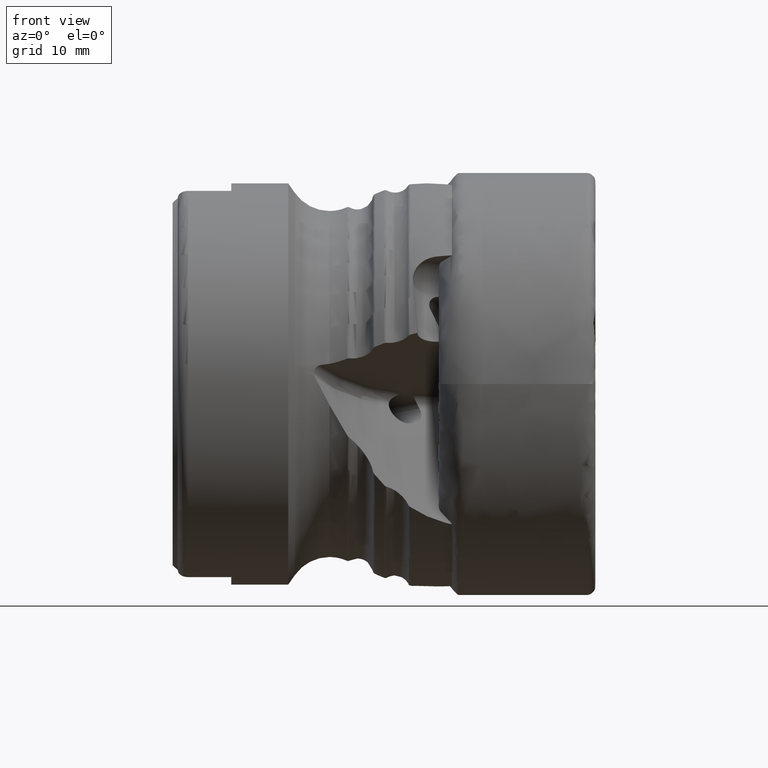
[diagram: clean part render]
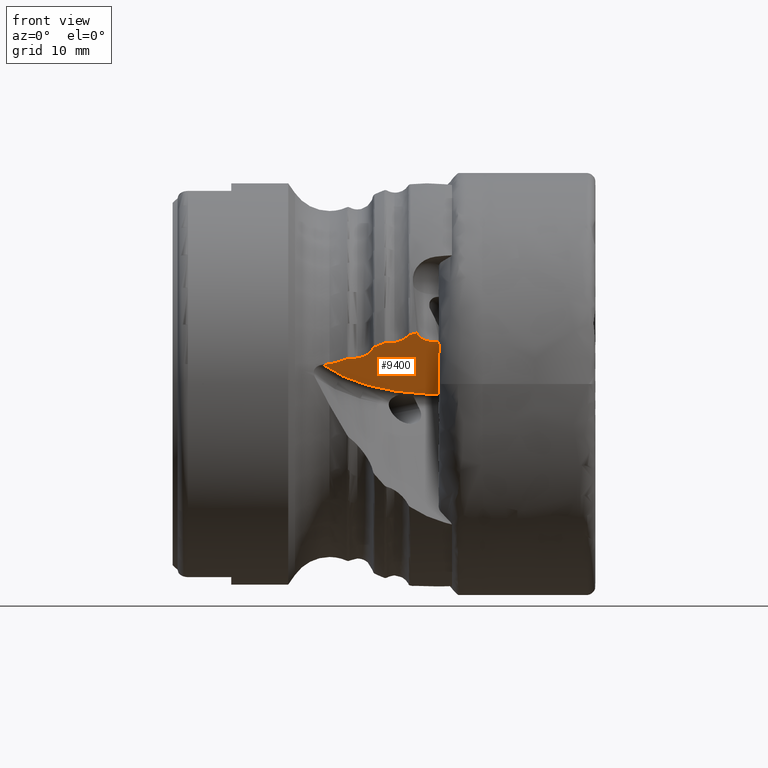
[diagram: same view with one face highlighted and labeled with its STEP entity id]
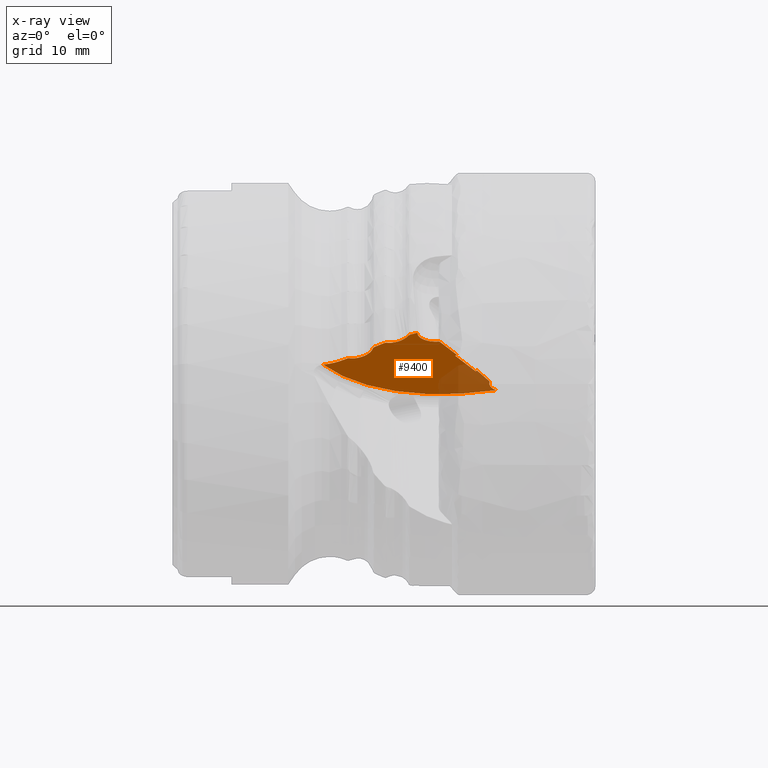
[diagram: x-ray of the same camera — body ghosted, the highlighted face saturated]
A machine part, front view. The second image highlights one B-rep face of the part: STEP entity #9400.
The next image is the same camera in x-ray: the body ghosted, the highlighted face saturated — about 19% of this face is hidden behind the body in this view.
In plain terms, the highlighted planar face has unit normal (-0.1638, 0.4932, 0.8543).
Its self-contained STEP definition (entity closure, byte-faithful):
#44 = VERTEX_POINT ( 'NONE', #5693 ) ;
#246 = VERTEX_POINT ( 'NONE', #7299 ) ;
#247 = VECTOR ( 'NONE', #10240, 1000.000000000000000 ) ;
#293 = B_SPLINE_CURVE_WITH_KNOTS ( 'NONE', 3,
 ( #1567, #692, #11453, #8530 ),
 .UNSPECIFIED., .F., .F.,
 ( 4, 4 ),
 ( 0.001732312793140167000, 0.002350826953086308100 ),
 .UNSPECIFIED. ) ;
#296 = CARTESIAN_POINT ( 'NONE',  ( -16.25928659763279400, -18.56466255637203500, 4.785584921961304700 ) ) ;
#320 = ORIENTED_EDGE ( 'NONE', *, *, #3134, .F. ) ;
#324 = B_SPLINE_CURVE_WITH_KNOTS ( 'NONE', 3,
 ( #5264, #2426, #12019, #6248, #9178, #7306, #8257, #2596, #11385, #11214 ),
 .UNSPECIFIED., .F., .F.,
 ( 4, 2, 2, 2, 4 ),
 ( 4.311938784021516300E-007, 0.0004154495496244667300, 0.0008304679053705312500, 0.001245486261116595900, 0.001660504616862660500 ),
 .UNSPECIFIED. ) ;
#372 = VERTEX_POINT ( 'NONE', #12306 ) ;
#419 = CARTESIAN_POINT ( 'NONE',  ( -20.02064262443753500, -17.63809508405531200, 3.529275608035401300 ) ) ;
#452 = CARTESIAN_POINT ( 'NONE',  ( -18.68126151810929500, -17.81853247613278800, 3.890318575010085000 ) ) ;
#499 =( BOUNDED_CURVE ( )  B_SPLINE_CURVE ( 3, ( #10281, #4403, #2473, #6373 ),
 .UNSPECIFIED., .F., .T. ) 
 B_SPLINE_CURVE_WITH_KNOTS ( ( 4, 4 ),
 ( 4.555259990297819300, 5.573532066662134600 ),
 .UNSPECIFIED. ) 
 CURVE ( )  GEOMETRIC_REPRESENTATION_ITEM ( )  RATIONAL_B_SPLINE_CURVE ( ( 1.000000000000000000, 0.9154439655823976000, 0.9154439655823976000, 1.000000000000000000 ) ) 
 REPRESENTATION_ITEM ( '' )  );
#564 = CARTESIAN_POINT ( 'NONE',  ( -16.04619360660492000, -18.58597432853758100, 4.838756393424720400 ) ) ;
#692 = CARTESIAN_POINT ( 'NONE',  ( -24.54173312176350000, -16.27981283671135800, 1.878013275757697700 ) ) ;
#708 = DIRECTION ( 'NONE',  ( -0.1638425078055066300, 0.4932432545499156300, 0.8543223773711008400 ) ) ;
#713 = DIRECTION ( 'NONE',  ( 0.4812669720744136000, 0.7959387694451546300, -0.3672377661467549100 ) ) ;
#792 = CARTESIAN_POINT ( 'NONE',  ( -10.50735222303118400, -10.44682190275985100, 1.201857195363393400 ) ) ;
#900 = CARTESIAN_POINT ( 'NONE',  ( -9.576801610211363800, -9.063571843650338500, 0.5816990103495324200 ) ) ;
#1073 = VERTEX_POINT ( 'NONE', #9835 ) ;
#1183 = CARTESIAN_POINT ( 'NONE',  ( -16.47170952644368600, -18.53903496843645700, 4.730050218074268300 ) ) ;
#1248 = B_SPLINE_CURVE_WITH_KNOTS ( 'NONE', 3,
 ( #4322, #10020, #11170, #1506 ),
 .UNSPECIFIED., .F., .F.,
 ( 4, 4 ),
 ( 2.236538292232658800E-007, 0.0002620645247950349600 ),
 .UNSPECIFIED. ) ;
#1296 = ORIENTED_EDGE ( 'NONE', *, *, #6526, .T. ) ;
#1360 = CARTESIAN_POINT ( 'NONE',  ( -20.14617852433819700, -17.58887470584972600, 3.476782851924245000 ) ) ;
#1367 = CARTESIAN_POINT ( 'NONE',  ( -18.79856528569024500, -17.86373034351819200, 3.893916982161555600 ) ) ;
#1399 = VERTEX_POINT ( 'NONE', #10569 ) ;
#1437 = ORIENTED_EDGE ( 'NONE', *, *, #2830, .T. ) ;
#1452 = LINE ( 'NONE', #792, #247 ) ;
#1506 = CARTESIAN_POINT ( 'NONE',  ( -19.15969123772051900, -17.94411304714139300, 3.871068984980765100 ) ) ;
#1567 = CARTESIAN_POINT ( 'NONE',  ( -24.33860484359848500, -16.27552184558049600, 1.914491945748806300 ) ) ;
#1579 = CARTESIAN_POINT ( 'NONE',  ( -16.84461627776071400, -18.44944887953622400, 4.606811363335477700 ) ) ;
#1607 = CARTESIAN_POINT ( 'NONE',  ( -19.15969123772051900, -17.94411304714139300, 3.871068984980765100 ) ) ;
#1668 = CARTESIAN_POINT ( 'NONE',  ( -16.68345526702159300, -18.50904566664640400, 4.672127149124230000 ) ) ;
#1787 = CARTESIAN_POINT ( 'NONE',  ( -9.970116225556935800, -9.784561730996010500, 0.9225325801000947600 ) ) ;
#1791 = CARTESIAN_POINT ( 'NONE',  ( -21.95460907775754200, -16.36966604893478900, 2.426050403900640500 ) ) ;
#1818 = VERTEX_POINT ( 'NONE', #5851 ) ;
#1943 = DIRECTION ( 'NONE',  ( 0.1638425078055066300, -0.4932432545499155800, -0.8543223773711008400 ) ) ;
#1948 = CARTESIAN_POINT ( 'NONE',  ( -20.05799696169266600, -17.62345188645162600, 3.513657514573526700 ) ) ;
#2025 = DIRECTION ( 'NONE',  ( 1.734723475976807700E-015, -0.8660254037844432600, 0.4999999999999921700 ) ) ;
#2240 = CARTESIAN_POINT ( 'NONE',  ( -16.14000575762616300, -20.11736251444975200, 5.704912418729475300 ) ) ;
#2345 = ORIENTED_EDGE ( 'NONE', *, *, #4421, .T. ) ;
#2403 = EDGE_CURVE ( 'NONE', #4937, #1818, #10301, .T. ) ;
#2426 = CARTESIAN_POINT ( 'NONE',  ( -16.95035830614502000, -18.28086515609679100, 4.489200229428944600 ) ) ;
#2471 = CARTESIAN_POINT ( 'NONE',  ( -12.43242011132884000, -13.63057698054047500, 2.670808259950414200 ) ) ;
#2473 = CARTESIAN_POINT ( 'NONE',  ( -9.070167720966122000, -7.143674572803872600, -0.4295916150689375000 ) ) ;
#2596 = CARTESIAN_POINT ( 'NONE',  ( -17.92787038846846700, -17.73997333491700300, 3.989448280369620300 ) ) ;
#2669 = CARTESIAN_POINT ( 'NONE',  ( -10.36111012513283600, -10.50642900829278800, 1.264317779572768300 ) ) ;
#2750 = CARTESIAN_POINT ( 'NONE',  ( -9.183118680948954400, -8.343433801277855700, 0.2414278890089253400 ) ) ;
#2830 = EDGE_CURVE ( 'NONE', #9230, #372, #6482, .T. ) ;
#2839 = CARTESIAN_POINT ( 'NONE',  ( -9.871133111016149500, -9.604556463925106900, 0.8375895375537303300 ) ) ;
#2932 = CARTESIAN_POINT ( 'NONE',  ( -22.51832895833708300, -16.59203191726537700, 2.446322828129440900 ) ) ;
#2951 = VERTEX_POINT ( 'NONE', #11590 ) ;
#3085 = CARTESIAN_POINT ( 'NONE',  ( -12.43242011132884000, -13.63057698054047500, 2.670808259950414200 ) ) ;
#3093 = LINE ( 'NONE', #6783, #5369 ) ;
#3111 = CARTESIAN_POINT ( 'NONE',  ( -16.04619360660492000, -18.58597432853758100, 4.838756393424720400 ) ) ;
#3134 = EDGE_CURVE ( 'NONE', #7513, #4287, #9249, .T. ) ;
#3159 = EDGE_CURVE ( 'NONE', #6544, #2951, #293, .T. ) ;
#3183 = CARTESIAN_POINT ( 'NONE',  ( -19.15969123772051900, -17.94411304714139300, 3.871068984980765100 ) ) ;
#3203 = EDGE_CURVE ( 'NONE', #9046, #3615, #9232, .T. ) ;
#3229 = CARTESIAN_POINT ( 'NONE',  ( -8.681716573700253300, -6.702818662285026500, -0.6096224769986017300 ) ) ;
#3549 = CARTESIAN_POINT ( 'NONE',  ( -12.26019494078442500, -13.70077457797376200, 2.744366318282192500 ) ) ;
#3615 = VERTEX_POINT ( 'NONE', #9360 ) ;
#3690 = CARTESIAN_POINT ( 'NONE',  ( -22.95817910918978200, -16.46514042153781800, 2.288707237494841200 ) ) ;
#3728 = EDGE_CURVE ( 'NONE', #9974, #246, #499, .T. ) ;
#3987 = ORIENTED_EDGE ( 'NONE', *, *, #2403, .F. ) ;
#4287 = VERTEX_POINT ( 'NONE', #8317 ) ;
#4303 = CARTESIAN_POINT ( 'NONE',  ( -20.20849401774367800, -17.51564892240099500, 3.422555019800178800 ) ) ;
#4311 = VECTOR ( 'NONE', #4987, 1000.000000000000200 ) ;
#4322 = CARTESIAN_POINT ( 'NONE',  ( -18.90843732244387700, -17.92132838707994600, 3.906099896595707700 ) ) ;
#4353 = CARTESIAN_POINT ( 'NONE',  ( -18.32263526145333900, -17.73787109103864500, 3.912526282144547900 ) ) ;
#4375 = DIRECTION ( 'NONE',  ( 0.9864865090998470300, 0.08192125390275184500, 0.1418917739793197900 ) ) ;
#4377 = CARTESIAN_POINT ( 'NONE',  ( -22.43486854980261200, -16.54616591081900300, 2.435848169039280400 ) ) ;
#4403 = CARTESIAN_POINT ( 'NONE',  ( -9.302392850448690400, -7.745182124339825300, -0.1268473564414792600 ) ) ;
#4421 = EDGE_CURVE ( 'NONE', #1399, #4907, #8005, .T. ) ;
#4450 = CARTESIAN_POINT ( 'NONE',  ( -20.31784233519971700, -17.13220443688232600, 3.180202350577263200 ) ) ;
#4478 = CARTESIAN_POINT ( 'NONE',  ( -15.11532785688518000, -16.69236164857213100, 3.924000649037441500 ) ) ;
#4497 = CARTESIAN_POINT ( 'NONE',  ( -20.25814942082535100, -17.27618534875055900, 3.274777715208230200 ) ) ;
#4531 = B_SPLINE_CURVE_WITH_KNOTS ( 'NONE', 3,
 ( #3111, #296, #1183, #7901 ),
 .UNSPECIFIED., .F., .F.,
 ( 4, 4 ),
 ( 0.002669087444836505400, 0.003329515748926952900 ),
 .UNSPECIFIED. ) ;
#4590 = CARTESIAN_POINT ( 'NONE',  ( -16.68345526702159300, -18.50904566664640400, 4.672127149124230000 ) ) ;
#4630 = CARTESIAN_POINT ( 'NONE',  ( -24.05418491991808600, -16.26951360595487700, 1.965569327138333200 ) ) ;
#4633 = CARTESIAN_POINT ( 'NONE',  ( -20.22600956930870100, -17.43118003660183700, 3.370427741838869700 ) ) ;
#4675 = CARTESIAN_POINT ( 'NONE',  ( -21.69999999999999600, -16.34777268031963600, 2.462239358140820800 ) ) ;
#4721 = ORIENTED_EDGE ( 'NONE', *, *, #11425, .T. ) ;
#4748 = CARTESIAN_POINT ( 'NONE',  ( -21.82613041890757400, -16.35112452154186300, 2.439985169821777600 ) ) ;
#4907 = VERTEX_POINT ( 'NONE', #4377 ) ;
#4937 = VERTEX_POINT ( 'NONE', #3085 ) ;
#4987 = DIRECTION ( 'NONE',  ( -0.4812669720744138200, -0.7959387694451544000, 0.3672377661467549600 ) ) ;
#5046 = B_SPLINE_CURVE_WITH_KNOTS ( 'NONE', 3,
 ( #9654, #2932, #6677, #8752 ),
 .UNSPECIFIED., .F., .F.,
 ( 4, 4 ),
 ( 2.263145974074533100E-007, 0.0002835084907783587900 ),
 .UNSPECIFIED. ) ;
#5061 = B_SPLINE_CURVE_WITH_KNOTS ( 'NONE', 3,
 ( #3183, #11006, #8926, #419 ),
 .UNSPECIFIED., .F., .F.,
 ( 4, 4 ),
 ( 2.229752659061665500E-007, 0.0009757776874911953100 ),
 .UNSPECIFIED. ) ;
#5106 = ORIENTED_EDGE ( 'NONE', *, *, #11964, .T. ) ;
#5201 = ORIENTED_EDGE ( 'NONE', *, *, #11304, .T. ) ;
#5211 = CARTESIAN_POINT ( 'NONE',  ( -18.44366900355058200, -17.75590445243651100, 3.899725917484086600 ) ) ;
#5264 = CARTESIAN_POINT ( 'NONE',  ( -16.88617794637232100, -18.38318742272516500, 4.560584569248519800 ) ) ;
#5326 = EDGE_CURVE ( 'NONE', #5539, #9888, #5061, .T. ) ;
#5334 = VERTEX_POINT ( 'NONE', #3229 ) ;
#5336 = CARTESIAN_POINT ( 'NONE',  ( -16.88617794637232100, -18.38318742272516500, 4.560584569248519800 ) ) ;
#5360 = CARTESIAN_POINT ( 'NONE',  ( -8.681716573700251500, -6.702818662285024800, -0.6096224769986009500 ) ) ;
#5369 = VECTOR ( 'NONE', #10644, 1000.000000000000000 ) ;
#5436 = CARTESIAN_POINT ( 'NONE',  ( -20.59998949970115200, -16.74811207533574000, 2.904336153341093400 ) ) ;
#5473 = CARTESIAN_POINT ( 'NONE',  ( -21.52114196468544800, -16.35050097871045300, 2.498116053679437800 ) ) ;
#5539 = VERTEX_POINT ( 'NONE', #1607 ) ;
#5573 = EDGE_CURVE ( 'NONE', #5334, #246, #6011, .T. ) ;
#5588 = CARTESIAN_POINT ( 'NONE',  ( -20.03309469592265700, -17.63321508540719800, 3.524070073037506300 ) ) ;
#5607 = CARTESIAN_POINT ( 'NONE',  ( -21.25991403166245400, -16.39471723501026500, 2.573742786079312100 ) ) ;
#5693 = CARTESIAN_POINT ( 'NONE',  ( -22.70440709119350600, -16.56457620023431700, 2.394785075724019700 ) ) ;
#5715 = CARTESIAN_POINT ( 'NONE',  ( -20.02064262443753500, -17.63809508405531200, 3.529275608035401300 ) ) ;
#5716 = CARTESIAN_POINT ( 'NONE',  ( -9.520928924659857600, -8.975924692121108000, 0.5418112042281664200 ) ) ;
#5782 = VECTOR ( 'NONE', #713, 1000.000000000000100 ) ;
#5851 = CARTESIAN_POINT ( 'NONE',  ( -10.50735222303118400, -10.44682190275985100, 1.201857195363393400 ) ) ;
#5904 = ORIENTED_EDGE ( 'NONE', *, *, #3203, .T. ) ;
#6011 = LINE ( 'NONE', #5360, #9305 ) ;
#6015 = ORIENTED_EDGE ( 'NONE', *, *, #7734, .T. ) ;
#6244 = VERTEX_POINT ( 'NONE', #3549 ) ;
#6248 = CARTESIAN_POINT ( 'NONE',  ( -17.21103402373378100, -18.02499387376389400, 4.291480315012956100 ) ) ;
#6373 = CARTESIAN_POINT ( 'NONE',  ( -8.545351400614853400, -6.691494426358053400, -0.5900083250161883800 ) ) ;
#6482 = B_SPLINE_CURVE_WITH_KNOTS ( 'NONE', 3,
 ( #9205, #4353, #5211, #452, #1367, #8124 ),
 .UNSPECIFIED., .F., .F.,
 ( 4, 2, 4 ),
 ( 0.001660504616862660500, 0.002028548552987758700, 0.002396592489112856900 ),
 .UNSPECIFIED. ) ;
#6526 = EDGE_CURVE ( 'NONE', #6244, #4287, #10970, .T. ) ;
#6534 = CARTESIAN_POINT ( 'NONE',  ( -9.731584484111611000, -9.331251962412931500, 0.7065598375467877500 ) ) ;
#6544 = VERTEX_POINT ( 'NONE', #10814 ) ;
#6624 = CARTESIAN_POINT ( 'NONE',  ( -9.685562243079935700, -9.239968092229471400, 0.6626832461982599100 ) ) ;
#6677 = CARTESIAN_POINT ( 'NONE',  ( -22.62138281539749900, -16.59710769673134200, 2.429489594238400500 ) ) ;
#6783 = CARTESIAN_POINT ( 'NONE',  ( -12.43242011132884000, -13.63057698054047500, 2.670808259950414200 ) ) ;
#6951 = B_SPLINE_CURVE_WITH_KNOTS ( 'NONE', 3,
 ( #2750, #9513, #12292, #5716, #900, #6624, #6534, #2839, #1787, #10397, #10485, #2669 ),
 .UNSPECIFIED., .F., .F.,
 ( 4, 2, 2, 2, 2, 4 ),
 ( 0.001663167065889183100, 0.002330604264188843100, 0.002664322863338673300, 0.002998041462488503100, 0.003665478660788156600, 0.004332915859087810100 ),
 .UNSPECIFIED. ) ;
#7002 = ORIENTED_EDGE ( 'NONE', *, *, #8484, .T. ) ;
#7012 = EDGE_LOOP ( 'NONE', ( #7750, #9129, #10516, #3987, #6015, #1296, #320, #12496, #5904, #7457, #1437, #5106, #11206, #7002, #9407, #8407, #2345, #4721, #5201, #7774, #12070, #9967 ) ) ;
#7299 = CARTESIAN_POINT ( 'NONE',  ( -8.545351400614853400, -6.691494426358053400, -0.5900083250161883800 ) ) ;
#7301 = B_SPLINE_CURVE_WITH_KNOTS ( 'NONE', 3,
 ( #7590, #3690, #9432, #10369, #4630, #9345 ),
 .UNSPECIFIED., .F., .F.,
 ( 4, 2, 4 ),
 ( 2.275142582097774400E-007, 0.0008662701536991884000, 0.001732312793140167000 ),
 .UNSPECIFIED. ) ;
#7306 = CARTESIAN_POINT ( 'NONE',  ( -17.54337879165702000, -17.83945036946740700, 4.120619424535580500 ) ) ;
#7388 = CARTESIAN_POINT ( 'NONE',  ( -16.76954760565023200, -18.49685250933027800, 4.648576581101521800 ) ) ;
#7429 = DIRECTION ( 'NONE',  ( 0.9864865090998470300, 0.08192125390275199800, 0.1418917739793196800 ) ) ;
#7457 = ORIENTED_EDGE ( 'NONE', *, *, #12010, .T. ) ;
#7502 = CARTESIAN_POINT ( 'NONE',  ( -9.183118680948954400, -8.343433801277855700, 0.2414278890089253400 ) ) ;
#7513 = VERTEX_POINT ( 'NONE', #564 ) ;
#7588 = PLANE ( 'NONE',  #11150 ) ;
#7590 = CARTESIAN_POINT ( 'NONE',  ( -22.70440709119350600, -16.56457620023431700, 2.394785075724019700 ) ) ;
#7715 = EDGE_CURVE ( 'NONE', #2951, #5334, #10945, .T. ) ;
#7734 = EDGE_CURVE ( 'NONE', #4937, #6244, #3093, .T. ) ;
#7750 = ORIENTED_EDGE ( 'NONE', *, *, #3728, .F. ) ;
#7774 = ORIENTED_EDGE ( 'NONE', *, *, #3159, .T. ) ;
#7779 = FACE_OUTER_BOUND ( 'NONE', #7012, .T. ) ;
#7789 = VERTEX_POINT ( 'NONE', #9711 ) ;
#7865 = EDGE_CURVE ( 'NONE', #7513, #9046, #4531, .T. ) ;
#7901 = CARTESIAN_POINT ( 'NONE',  ( -16.68345526702159300, -18.50904566664640400, 4.672127149124230000 ) ) ;
#8005 = B_SPLINE_CURVE_WITH_KNOTS ( 'NONE', 3,
 ( #10534, #4748, #1791, #8491, #10442, #11494 ),
 .UNSPECIFIED., .F., .F.,
 ( 4, 2, 4 ),
 ( 0.002188831658622608300, 0.002571323110308206100, 0.002953814561993803800 ),
 .UNSPECIFIED. ) ;
#8116 = CARTESIAN_POINT ( 'NONE',  ( -20.05799696169266600, -17.62345188645162600, 3.513657514573526700 ) ) ;
#8124 = CARTESIAN_POINT ( 'NONE',  ( -18.90843732244387700, -17.92132838707994600, 3.906099896595707700 ) ) ;
#8257 = CARTESIAN_POINT ( 'NONE',  ( -17.66836515780874000, -17.79542119957358900, 4.071229203884685800 ) ) ;
#8317 = CARTESIAN_POINT ( 'NONE',  ( -13.92108889847426800, -16.44762813238335800, 4.011735621019950800 ) ) ;
#8407 = ORIENTED_EDGE ( 'NONE', *, *, #12131, .T. ) ;
#8414 = CARTESIAN_POINT ( 'NONE',  ( -20.02064262443753500, -17.63809508405531200, 3.529275608035401300 ) ) ;
#8425 = CARTESIAN_POINT ( 'NONE',  ( -8.681716573700255100, -23.15730133418944800, 8.890377523001248500 ) ) ;
#8484 = EDGE_CURVE ( 'NONE', #9888, #1073, #10341, .T. ) ;
#8491 = CARTESIAN_POINT ( 'NONE',  ( -22.20083677225522900, -16.43576626975590200, 2.416991674879389600 ) ) ;
#8530 = CARTESIAN_POINT ( 'NONE',  ( -24.94742010240212000, -16.33209037788830600, 1.830392812078543500 ) ) ;
#8748 = B_SPLINE_CURVE_WITH_KNOTS ( 'NONE', 3,
 ( #4633, #4497, #4450, #12312, #5436, #12188, #9309, #5607, #11265, #5473, #12228, #4675 ),
 .UNSPECIFIED., .F., .F.,
 ( 4, 2, 2, 2, 2, 4 ),
 ( 1.136551653633666500E-006, 0.0005480603283958773900, 0.001094984105138121100, 0.001641907881880364700, 0.001915369770251486600, 0.002188831658622608300 ),
 .UNSPECIFIED. ) ;
#8752 = CARTESIAN_POINT ( 'NONE',  ( -22.70440709119350600, -16.56457620023431700, 2.394785075724019700 ) ) ;
#8881 = CARTESIAN_POINT ( 'NONE',  ( -18.20000000000000300, -17.73324659121468400, 3.933375397080375100 ) ) ;
#8926 = CARTESIAN_POINT ( 'NONE',  ( -19.73834568536217300, -17.74872797615686100, 3.647288630841391700 ) ) ;
#9046 = VERTEX_POINT ( 'NONE', #4590 ) ;
#9129 = ORIENTED_EDGE ( 'NONE', *, *, #9909, .T. ) ;
#9178 = CARTESIAN_POINT ( 'NONE',  ( -17.31638974248105400, -17.95339613109213800, 4.229938149926705500 ) ) ;
#9205 = CARTESIAN_POINT ( 'NONE',  ( -18.20000000000000300, -17.73324659121468400, 3.933375397080375100 ) ) ;
#9230 = VERTEX_POINT ( 'NONE', #8881 ) ;
#9232 = B_SPLINE_CURVE_WITH_KNOTS ( 'NONE', 3,
 ( #1668, #7388, #1579, #5336 ),
 .UNSPECIFIED., .F., .F.,
 ( 4, 4 ),
 ( 3.839597830587754600E-005, 0.0003083767605129434900 ),
 .UNSPECIFIED. ) ;
#9249 =( BOUNDED_CURVE ( )  B_SPLINE_CURVE ( 3, ( #10343, #11359, #4478, #11322 ),
 .UNSPECIFIED., .F., .F. ) 
 B_SPLINE_CURVE_WITH_KNOTS ( ( 4, 4 ),
 ( 3.225971095395004300, 4.573911879407406300 ),
 .UNSPECIFIED. ) 
 CURVE ( )  GEOMETRIC_REPRESENTATION_ITEM ( )  RATIONAL_B_SPLINE_CURVE ( ( 1.000000000000000000, 0.8542332909870490300, 0.8542332909870490300, 1.000000000000000000 ) ) 
 REPRESENTATION_ITEM ( '' )  );
#9305 = VECTOR ( 'NONE', #4375, 1000.000000000000000 ) ;
#9309 = CARTESIAN_POINT ( 'NONE',  ( -21.01312076100331800, -16.47287859821261000, 2.666199446038704400 ) ) ;
#9345 = CARTESIAN_POINT ( 'NONE',  ( -24.33860484359848500, -16.27552184558049600, 1.914491945748806300 ) ) ;
#9360 = CARTESIAN_POINT ( 'NONE',  ( -16.88617794637232100, -18.38318742272516500, 4.560584569248519800 ) ) ;
#9400 = ADVANCED_FACE ( 'NONE', ( #7779 ), #7588, .F. ) ;
#9407 = ORIENTED_EDGE ( 'NONE', *, *, #10664, .T. ) ;
#9432 = CARTESIAN_POINT ( 'NONE',  ( -23.22148621218066500, -16.39056885238712300, 2.195156112464320400 ) ) ;
#9513 = CARTESIAN_POINT ( 'NONE',  ( -9.272492292801819900, -8.526445515571760200, 0.3299496214188688000 ) ) ;
#9633 = CARTESIAN_POINT ( 'NONE',  ( -8.681716573700255100, -23.15730133418944400, 8.890377523001246700 ) ) ;
#9654 = CARTESIAN_POINT ( 'NONE',  ( -22.43486854980261200, -16.54616591081900300, 2.435848169039280400 ) ) ;
#9711 = CARTESIAN_POINT ( 'NONE',  ( -20.22600956930870100, -17.43118003660183700, 3.370427741838869700 ) ) ;
#9728 = B_SPLINE_CURVE_WITH_KNOTS ( 'NONE', 3,
 ( #8116, #1360, #4303, #11067 ),
 .UNSPECIFIED., .F., .F.,
 ( 4, 4 ),
 ( 6.112927604565348900E-006, 0.0003075026274510260600 ),
 .UNSPECIFIED. ) ;
#9730 = VERTEX_POINT ( 'NONE', #10943 ) ;
#9835 = CARTESIAN_POINT ( 'NONE',  ( -20.05799696169266600, -17.62345188645162600, 3.513657514573526700 ) ) ;
#9888 = VERTEX_POINT ( 'NONE', #8414 ) ;
#9909 = EDGE_CURVE ( 'NONE', #9974, #9730, #6951, .T. ) ;
#9967 = ORIENTED_EDGE ( 'NONE', *, *, #5573, .T. ) ;
#9974 = VERTEX_POINT ( 'NONE', #7502 ) ;
#10020 = CARTESIAN_POINT ( 'NONE',  ( -18.98649716209115100, -17.96224957300881200, 3.914755386884569300 ) ) ;
#10240 = DIRECTION ( 'NONE',  ( 0.8611258527220790900, -0.3509879871664279800, 0.3677902916588902700 ) ) ;
#10281 = CARTESIAN_POINT ( 'NONE',  ( -9.183118680948954400, -8.343433801277855700, 0.2414278890089253400 ) ) ;
#10301 = LINE ( 'NONE', #2471, #5782 ) ;
#10341 = B_SPLINE_CURVE_WITH_KNOTS ( 'NONE', 3,
 ( #5715, #5588, #11531, #1948 ),
 .UNSPECIFIED., .F., .F.,
 ( 4, 4 ),
 ( 2.305080562063051500E-007, 4.328506172030089700E-005 ),
 .UNSPECIFIED. ) ;
#10343 = CARTESIAN_POINT ( 'NONE',  ( -16.04619360660492000, -18.58597432853758100, 4.838756393424720400 ) ) ;
#10369 = CARTESIAN_POINT ( 'NONE',  ( -23.76770749863356300, -16.29255421033840900, 2.033812654680851000 ) ) ;
#10397 = CARTESIAN_POINT ( 'NONE',  ( -10.16317267740926900, -10.14638258530999200, 1.094405454340114000 ) ) ;
#10442 = CARTESIAN_POINT ( 'NONE',  ( -22.32191136428722400, -16.48408983079489000, 2.421671530908165800 ) ) ;
#10485 = CARTESIAN_POINT ( 'NONE',  ( -10.26255115432296500, -10.32625683567284400, 1.179197031498819200 ) ) ;
#10516 = ORIENTED_EDGE ( 'NONE', *, *, #12141, .F. ) ;
#10534 = CARTESIAN_POINT ( 'NONE',  ( -21.69999999999999600, -16.34777268031963600, 2.462239358140820800 ) ) ;
#10569 = CARTESIAN_POINT ( 'NONE',  ( -21.69999999999999600, -16.34777268031963600, 2.462239358140820800 ) ) ;
#10644 = DIRECTION ( 'NONE',  ( 0.8611258527220790900, -0.3509879871664279800, 0.3677902916588902700 ) ) ;
#10664 = EDGE_CURVE ( 'NONE', #1073, #7789, #9728, .T. ) ;
#10814 = CARTESIAN_POINT ( 'NONE',  ( -24.33860484359848500, -16.27552184558049600, 1.914491945748806300 ) ) ;
#10889 = AXIS2_PLACEMENT_3D ( 'NONE', #9633, #1943, #2025 ) ;
#10943 = CARTESIAN_POINT ( 'NONE',  ( -10.36111012513283600, -10.50642900829278800, 1.264317779572768300 ) ) ;
#10945 = CIRCLE ( 'NONE', #10889, 18.99999999999999300 ) ;
#10970 = LINE ( 'NONE', #2240, #4311 ) ;
#11006 = CARTESIAN_POINT ( 'NONE',  ( -19.45136816791271900, -17.85074551973534800, 3.761225224259544300 ) ) ;
#11067 = CARTESIAN_POINT ( 'NONE',  ( -20.22600956930870100, -17.43118003660183700, 3.370427741838869700 ) ) ;
#11150 = AXIS2_PLACEMENT_3D ( 'NONE', #8425, #708, #7429 ) ;
#11170 = CARTESIAN_POINT ( 'NONE',  ( -19.08036112416153100, -17.96950709030589600, 3.900944224027155000 ) ) ;
#11206 = ORIENTED_EDGE ( 'NONE', *, *, #5326, .T. ) ;
#11214 = CARTESIAN_POINT ( 'NONE',  ( -18.20000000000000300, -17.73324659121468400, 3.933375397080375100 ) ) ;
#11265 = CARTESIAN_POINT ( 'NONE',  ( -21.34661257855605100, -16.37499718649311100, 2.545730306375497200 ) ) ;
#11304 = EDGE_CURVE ( 'NONE', #44, #6544, #7301, .T. ) ;
#11322 = CARTESIAN_POINT ( 'NONE',  ( -13.92108889847426800, -16.44762813238335800, 4.011735621019950800 ) ) ;
#11359 = CARTESIAN_POINT ( 'NONE',  ( -15.94457233086844800, -17.52677312949338900, 4.246715291173496000 ) ) ;
#11385 = CARTESIAN_POINT ( 'NONE',  ( -18.06171247623123600, -17.72803185426425900, 3.956885539620763400 ) ) ;
#11425 = EDGE_CURVE ( 'NONE', #4907, #44, #5046, .T. ) ;
#11453 = CARTESIAN_POINT ( 'NONE',  ( -24.74467388959578800, -16.29848886729245500, 1.849875773020510600 ) ) ;
#11494 = CARTESIAN_POINT ( 'NONE',  ( -22.43486854980261200, -16.54616591081900300, 2.435848169039280400 ) ) ;
#11531 = CARTESIAN_POINT ( 'NONE',  ( -20.04554614247230400, -17.62833402067456100, 3.518864042385962100 ) ) ;
#11590 = CARTESIAN_POINT ( 'NONE',  ( -24.94742010240212000, -16.33209037788830600, 1.830392812078543500 ) ) ;
#11964 = EDGE_CURVE ( 'NONE', #372, #5539, #1248, .T. ) ;
#12010 = EDGE_CURVE ( 'NONE', #3615, #9230, #324, .T. ) ;
#12019 = CARTESIAN_POINT ( 'NONE',  ( -17.02832879519104400, -18.18888438111224900, 4.421141872525741000 ) ) ;
#12070 = ORIENTED_EDGE ( 'NONE', *, *, #7715, .T. ) ;
#12131 = EDGE_CURVE ( 'NONE', #7789, #1399, #8748, .T. ) ;
#12141 = EDGE_CURVE ( 'NONE', #1818, #9730, #1452, .T. ) ;
#12188 = CARTESIAN_POINT ( 'NONE',  ( -20.86279073161424300, -16.55056640624023600, 2.739882914892325600 ) ) ;
#12228 = CARTESIAN_POINT ( 'NONE',  ( -21.60982318066583100, -16.34537628472399400, 2.478149968260476800 ) ) ;
#12292 = CARTESIAN_POINT ( 'NONE',  ( -9.365754993110284600, -8.708388949243794000, 0.4171087297805901000 ) ) ;
#12306 = CARTESIAN_POINT ( 'NONE',  ( -18.90843732244387700, -17.92132838707994600, 3.906099896595707700 ) ) ;
#12312 = CARTESIAN_POINT ( 'NONE',  ( -20.49030206637303700, -16.86545782522116000, 2.993121681780274800 ) ) ;
#12496 = ORIENTED_EDGE ( 'NONE', *, *, #7865, .T. ) ;